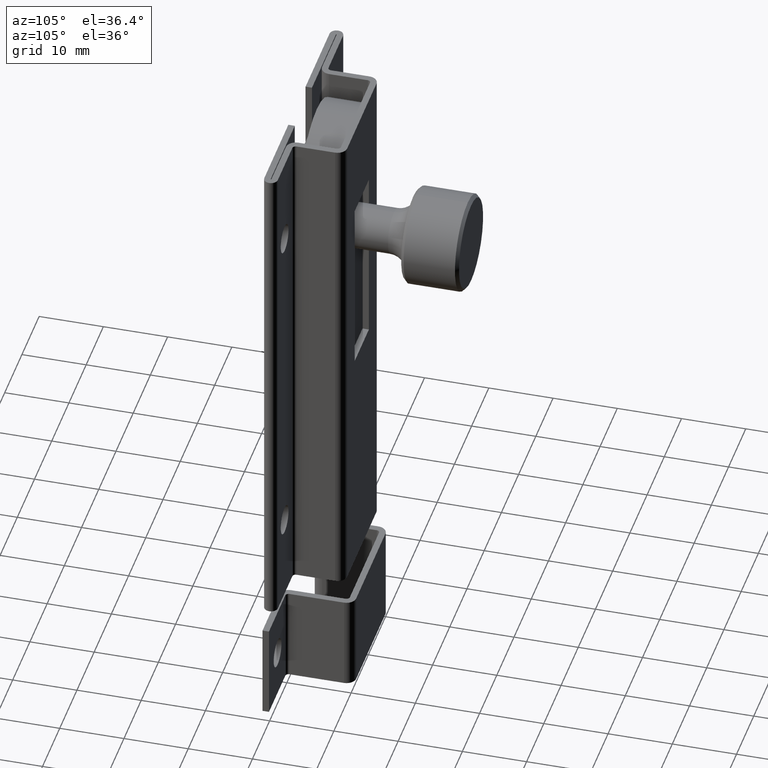
[diagram: clean part render]
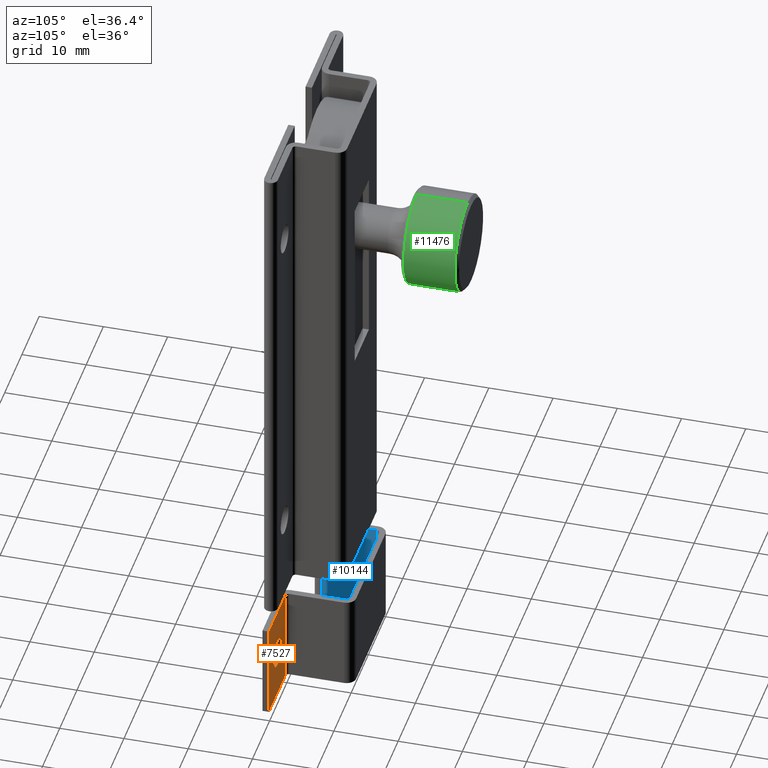
[diagram: same view with three faces highlighted in distinct colors, each labeled with its STEP entity id]
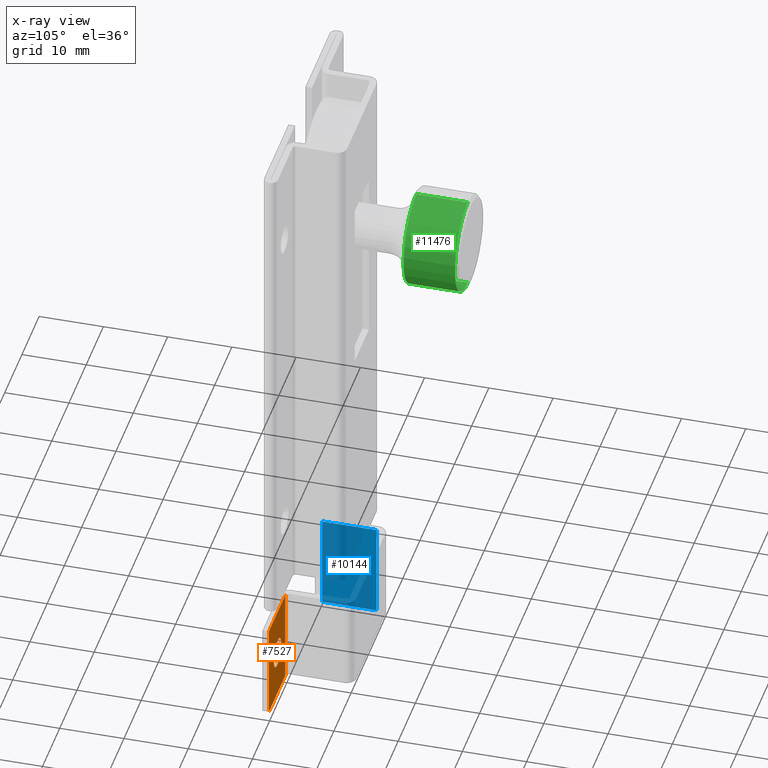
[diagram: x-ray of the same camera — body ghosted, the three highlighted faces saturated]
A machine part, auxiliary view with three faces highlighted in distinct colors.
The next image is the same camera in x-ray (body ghosted, the three faces saturated) — at least one of them is partly hidden behind the body in this view.
Their STEP definitions:

[orange] entity #7527 — the highlighted planar face has unit normal (0, -1, 0).
#126 = DIRECTION ( 'NONE',  ( 0.000000000000000000, -1.000000000000000000, 0.000000000000000000 ) ) ;
#357 = DIRECTION ( 'NONE',  ( 0.000000000000000000, 1.000000000000000000, 0.000000000000000000 ) ) ;
#419 = DIRECTION ( 'NONE',  ( 1.000000000000000000, 0.000000000000000000, 0.000000000000000000 ) ) ;
#589 = EDGE_CURVE ( 'NONE', #9577, #7554, #14974, .T. ) ;
#727 = VERTEX_POINT ( 'NONE', #1548 ) ;
#1412 = CARTESIAN_POINT ( 'NONE',  ( 9.000000000000001776, 1.000000000000000000, 7.500000000000000000 ) ) ;
#1548 = CARTESIAN_POINT ( 'NONE',  ( 10.50000000000000000, 1.000000000000000000, -7.500000000000000000 ) ) ;
#1728 = DIRECTION ( 'NONE',  ( 0.000000000000000000, 0.000000000000000000, 1.000000000000000000 ) ) ;
#1735 = DIRECTION ( 'NONE',  ( 0.000000000000000000, 0.000000000000000000, 1.000000000000000000 ) ) ;
#1842 = CARTESIAN_POINT ( 'NONE',  ( 9.000000000000001776, 1.000000000000000000, -7.500000000000000000 ) ) ;
#2993 = CIRCLE ( 'NONE', #14436, 2.249999999999999112 ) ;
#3562 = VECTOR ( 'NONE', #1735, 1000.000000000000000 ) ;
#3863 = VERTEX_POINT ( 'NONE', #14171 ) ;
#3921 = AXIS2_PLACEMENT_3D ( 'NONE', #14051, #357, #1728 ) ;
#3961 = LINE ( 'NONE', #6705, #3562 ) ;
#4199 = LINE ( 'NONE', #1842, #6763 ) ;
#4218 = CIRCLE ( 'NONE', #3921, 2.249999999999999112 ) ;
#4231 = ORIENTED_EDGE ( 'NONE', *, *, #8583, .T. ) ;
#4376 = ORIENTED_EDGE ( 'NONE', *, *, #4756, .F. ) ;
#4721 = CARTESIAN_POINT ( 'NONE',  ( 15.00000000000000000, 1.000000000000000000, -2.250000000000005773 ) ) ;
#4756 = EDGE_CURVE ( 'NONE', #3863, #7554, #15485, .T. ) ;
#5134 = DIRECTION ( 'NONE',  ( 0.000000000000000000, 0.000000000000000000, 1.000000000000000000 ) ) ;
#5137 = EDGE_CURVE ( 'NONE', #9685, #14886, #4218, .T. ) ;
#5721 = EDGE_CURVE ( 'NONE', #727, #3863, #4199, .T. ) ;
#5758 = EDGE_LOOP ( 'NONE', ( #14419, #7954 ) ) ;
#6012 = DIRECTION ( 'NONE',  ( 0.000000000000000000, 0.000000000000000000, 1.000000000000000000 ) ) ;
#6119 = CARTESIAN_POINT ( 'NONE',  ( 20.00000000000000000, 1.000000000000000000, -7.500000000000000000 ) ) ;
#6314 = DIRECTION ( 'NONE',  ( 1.000000000000000000, 0.000000000000000000, 0.000000000000000000 ) ) ;
#6705 = CARTESIAN_POINT ( 'NONE',  ( 10.50000000000000000, 1.000000000000000000, -7.500000000000000000 ) ) ;
#6763 = VECTOR ( 'NONE', #419, 1000.000000000000000 ) ;
#7023 = CARTESIAN_POINT ( 'NONE',  ( 15.00000000000000000, 1.000000000000000000, 2.249999999999992006 ) ) ;
#7527 = ADVANCED_FACE ( 'NONE', ( #15243, #14466 ), #8993, .F. ) ;
#7554 = VERTEX_POINT ( 'NONE', #13981 ) ;
#7954 = ORIENTED_EDGE ( 'NONE', *, *, #5137, .F. ) ;
#8116 = EDGE_CURVE ( 'NONE', #14886, #9685, #2993, .T. ) ;
#8583 = EDGE_CURVE ( 'NONE', #727, #9577, #3961, .T. ) ;
#8940 = CARTESIAN_POINT ( 'NONE',  ( 9.000000000000001776, 1.000000000000000000, -7.500000000000000000 ) ) ;
#8993 = PLANE ( 'NONE',  #12286 ) ;
#9026 = ORIENTED_EDGE ( 'NONE', *, *, #589, .T. ) ;
#9577 = VERTEX_POINT ( 'NONE', #13596 ) ;
#9685 = VERTEX_POINT ( 'NONE', #4721 ) ;
#9921 = ORIENTED_EDGE ( 'NONE', *, *, #5721, .F. ) ;
#10213 = VECTOR ( 'NONE', #6314, 1000.000000000000000 ) ;
#11545 = DIRECTION ( 'NONE',  ( 0.000000000000000000, -0.000000000000000000, -1.000000000000000000 ) ) ;
#12119 = VECTOR ( 'NONE', #6012, 1000.000000000000000 ) ;
#12286 = AXIS2_PLACEMENT_3D ( 'NONE', #8940, #126, #11545 ) ;
#12393 = EDGE_LOOP ( 'NONE', ( #9026, #4376, #9921, #4231 ) ) ;
#12671 = CARTESIAN_POINT ( 'NONE',  ( 15.00000000000000000, 1.000000000000000000, -6.938893903907228378E-15 ) ) ;
#13596 = CARTESIAN_POINT ( 'NONE',  ( 10.50000000000000000, 1.000000000000000000, 7.500000000000000000 ) ) ;
#13981 = CARTESIAN_POINT ( 'NONE',  ( 20.00000000000000000, 1.000000000000000000, 7.500000000000000000 ) ) ;
#14051 = CARTESIAN_POINT ( 'NONE',  ( 15.00000000000000000, 1.000000000000000000, -6.938893903907228378E-15 ) ) ;
#14073 = DIRECTION ( 'NONE',  ( 0.000000000000000000, 1.000000000000000000, 0.000000000000000000 ) ) ;
#14171 = CARTESIAN_POINT ( 'NONE',  ( 20.00000000000000000, 1.000000000000000000, -7.500000000000000000 ) ) ;
#14419 = ORIENTED_EDGE ( 'NONE', *, *, #8116, .F. ) ;
#14436 = AXIS2_PLACEMENT_3D ( 'NONE', #12671, #14073, #5134 ) ;
#14466 = FACE_OUTER_BOUND ( 'NONE', #12393, .T. ) ;
#14886 = VERTEX_POINT ( 'NONE', #7023 ) ;
#14974 = LINE ( 'NONE', #1412, #10213 ) ;
#15243 = FACE_BOUND ( 'NONE', #5758, .T. ) ;
#15485 = LINE ( 'NONE', #6119, #12119 ) ;

[blue] entity #10144 — the highlighted planar face has unit normal (1, -0, 0).
#183 = CARTESIAN_POINT ( 'NONE',  ( -9.000000000000000000, 9.999999999999991118, -7.500000000000000000 ) ) ;
#424 = VERTEX_POINT ( 'NONE', #4306 ) ;
#504 = CARTESIAN_POINT ( 'NONE',  ( -9.000000000000001776, 1.499999999999998890, 7.500000000000000000 ) ) ;
#585 = DIRECTION ( 'NONE',  ( 0.000000000000000000, 0.000000000000000000, 1.000000000000000000 ) ) ;
#694 = EDGE_CURVE ( 'NONE', #13114, #9853, #9024, .T. ) ;
#2023 = DIRECTION ( 'NONE',  ( 1.652117596168387756E-16, 1.000000000000000000, 0.000000000000000000 ) ) ;
#2745 = ORIENTED_EDGE ( 'NONE', *, *, #15755, .F. ) ;
#3042 = VERTEX_POINT ( 'NONE', #504 ) ;
#3153 = ORIENTED_EDGE ( 'NONE', *, *, #694, .T. ) ;
#3319 = CARTESIAN_POINT ( 'NONE',  ( -9.000000000000001776, 0.000000000000000000, 7.500000000000000000 ) ) ;
#4281 = LINE ( 'NONE', #3319, #9391 ) ;
#4306 = CARTESIAN_POINT ( 'NONE',  ( -9.000000000000000000, 9.999999999999991118, 7.500000000000000000 ) ) ;
#4390 = AXIS2_PLACEMENT_3D ( 'NONE', #14652, #7062, #13422 ) ;
#4593 = VECTOR ( 'NONE', #585, 1000.000000000000000 ) ;
#5141 = ORIENTED_EDGE ( 'NONE', *, *, #8279, .T. ) ;
#5517 = CARTESIAN_POINT ( 'NONE',  ( -9.000000000000001776, 1.499999999999998890, -7.500000000000000000 ) ) ;
#5866 = CARTESIAN_POINT ( 'NONE',  ( -9.000000000000001776, 1.499999999999998890, -7.500000000000000000 ) ) ;
#6597 = ORIENTED_EDGE ( 'NONE', *, *, #13138, .F. ) ;
#7062 = DIRECTION ( 'NONE',  ( 1.000000000000000000, -1.652117596168387756E-16, 0.000000000000000000 ) ) ;
#7765 = DIRECTION ( 'NONE',  ( 1.652117596168387756E-16, 1.000000000000000000, 0.000000000000000000 ) ) ;
#8279 = EDGE_CURVE ( 'NONE', #9853, #424, #12639, .T. ) ;
#8361 = DIRECTION ( 'NONE',  ( 0.000000000000000000, 0.000000000000000000, 1.000000000000000000 ) ) ;
#9024 = LINE ( 'NONE', #15057, #15763 ) ;
#9391 = VECTOR ( 'NONE', #2023, 1000.000000000000000 ) ;
#9853 = VERTEX_POINT ( 'NONE', #183 ) ;
#10069 = FACE_OUTER_BOUND ( 'NONE', #11729, .T. ) ;
#10144 = ADVANCED_FACE ( 'NONE', ( #10069 ), #12100, .T. ) ;
#11729 = EDGE_LOOP ( 'NONE', ( #6597, #2745, #3153, #5141 ) ) ;
#12071 = CARTESIAN_POINT ( 'NONE',  ( -9.000000000000000000, 9.999999999999991118, -7.500000000000000000 ) ) ;
#12100 = PLANE ( 'NONE',  #4390 ) ;
#12639 = LINE ( 'NONE', #12071, #15418 ) ;
#13114 = VERTEX_POINT ( 'NONE', #5866 ) ;
#13138 = EDGE_CURVE ( 'NONE', #3042, #424, #4281, .T. ) ;
#13422 = DIRECTION ( 'NONE',  ( 1.652117596168387756E-16, 1.000000000000000000, 0.000000000000000000 ) ) ;
#14652 = CARTESIAN_POINT ( 'NONE',  ( -9.000000000000001776, 0.000000000000000000, -7.500000000000000000 ) ) ;
#15057 = CARTESIAN_POINT ( 'NONE',  ( -9.000000000000001776, 0.000000000000000000, -7.500000000000000000 ) ) ;
#15418 = VECTOR ( 'NONE', #8361, 1000.000000000000000 ) ;
#15459 = LINE ( 'NONE', #5517, #4593 ) ;
#15755 = EDGE_CURVE ( 'NONE', #13114, #3042, #15459, .T. ) ;
#15763 = VECTOR ( 'NONE', #7765, 1000.000000000000000 ) ;

[green] entity #11476 — the highlighted cylindrical surface (partial cylindrical patch) has radius 7.5 mm, axis along (-0, -1, -0).
#1438 = VERTEX_POINT ( 'NONE', #1889 ) ;
#1838 = EDGE_CURVE ( 'NONE', #3326, #4436, #12554, .T. ) ;
#1889 = CARTESIAN_POINT ( 'NONE',  ( 0.000000000000000000, 15.49999999999998757, 12.00000000000000711 ) ) ;
#2075 = CIRCLE ( 'NONE', #9393, 7.500000000000000000 ) ;
#2107 = ORIENTED_EDGE ( 'NONE', *, *, #4476, .T. ) ;
#3047 = VECTOR ( 'NONE', #8785, 1000.000000000000000 ) ;
#3326 = VERTEX_POINT ( 'NONE', #3581 ) ;
#3581 = CARTESIAN_POINT ( 'NONE',  ( 0.000000000000000000, 23.50000000000000711, 12.00000000000000533 ) ) ;
#3972 = AXIS2_PLACEMENT_3D ( 'NONE', #6591, #10397, #6693 ) ;
#4029 = AXIS2_PLACEMENT_3D ( 'NONE', #10703, #14578, #9467 ) ;
#4269 = DIRECTION ( 'NONE',  ( 0.000000000000000000, 0.000000000000000000, -1.000000000000000000 ) ) ;
#4321 = EDGE_CURVE ( 'NONE', #4436, #11685, #11529, .T. ) ;
#4383 = CARTESIAN_POINT ( 'NONE',  ( 0.000000000000000000, 15.49999999999998757, 19.50000000000000711 ) ) ;
#4436 = VERTEX_POINT ( 'NONE', #7743 ) ;
#4476 = EDGE_CURVE ( 'NONE', #11685, #1438, #2075, .T. ) ;
#5183 = VECTOR ( 'NONE', #10535, 1000.000000000000000 ) ;
#6591 = CARTESIAN_POINT ( 'NONE',  ( 0.000000000000000000, 6.000000000000000000, 19.50000000000000711 ) ) ;
#6693 = DIRECTION ( 'NONE',  ( 0.000000000000000000, 0.000000000000000000, -1.000000000000000000 ) ) ;
#7743 = CARTESIAN_POINT ( 'NONE',  ( 9.184850993605151889E-16, 23.50000000000000711, 27.00000000000001066 ) ) ;
#7865 = CYLINDRICAL_SURFACE ( 'NONE', #3972, 7.500000000000000000 ) ;
#8004 = DIRECTION ( 'NONE',  ( 0.000000000000000000, 1.000000000000000000, 0.000000000000000000 ) ) ;
#8358 = EDGE_LOOP ( 'NONE', ( #14349, #14209, #2107, #9783 ) ) ;
#8785 = DIRECTION ( 'NONE',  ( -0.000000000000000000, -1.000000000000000000, -0.000000000000000000 ) ) ;
#9393 = AXIS2_PLACEMENT_3D ( 'NONE', #4383, #8004, #4269 ) ;
#9467 = DIRECTION ( 'NONE',  ( 0.000000000000000000, 0.000000000000000000, 1.000000000000000000 ) ) ;
#9783 = ORIENTED_EDGE ( 'NONE', *, *, #15682, .F. ) ;
#10397 = DIRECTION ( 'NONE',  ( -0.000000000000000000, -1.000000000000000000, -0.000000000000000000 ) ) ;
#10535 = DIRECTION ( 'NONE',  ( -0.000000000000000000, -1.000000000000000000, -0.000000000000000000 ) ) ;
#10703 = CARTESIAN_POINT ( 'NONE',  ( 0.000000000000000000, 23.50000000000000711, 19.50000000000000711 ) ) ;
#11476 = ADVANCED_FACE ( 'NONE', ( #13408 ), #7865, .T. ) ;
#11529 = LINE ( 'NONE', #13891, #3047 ) ;
#11685 = VERTEX_POINT ( 'NONE', #16067 ) ;
#12554 = CIRCLE ( 'NONE', #4029, 7.500000000000000000 ) ;
#13290 = LINE ( 'NONE', #15390, #5183 ) ;
#13408 = FACE_OUTER_BOUND ( 'NONE', #8358, .T. ) ;
#13891 = CARTESIAN_POINT ( 'NONE',  ( 9.184850993605149917E-16, 6.000000000000000000, 27.00000000000000711 ) ) ;
#14209 = ORIENTED_EDGE ( 'NONE', *, *, #4321, .T. ) ;
#14349 = ORIENTED_EDGE ( 'NONE', *, *, #1838, .T. ) ;
#14578 = DIRECTION ( 'NONE',  ( -0.000000000000000000, -1.000000000000000000, -0.000000000000000000 ) ) ;
#15390 = CARTESIAN_POINT ( 'NONE',  ( 0.000000000000000000, 6.000000000000000000, 12.00000000000000711 ) ) ;
#15682 = EDGE_CURVE ( 'NONE', #3326, #1438, #13290, .T. ) ;
#16067 = CARTESIAN_POINT ( 'NONE',  ( 9.184850993605151889E-16, 15.49999999999998757, 27.00000000000001066 ) ) ;